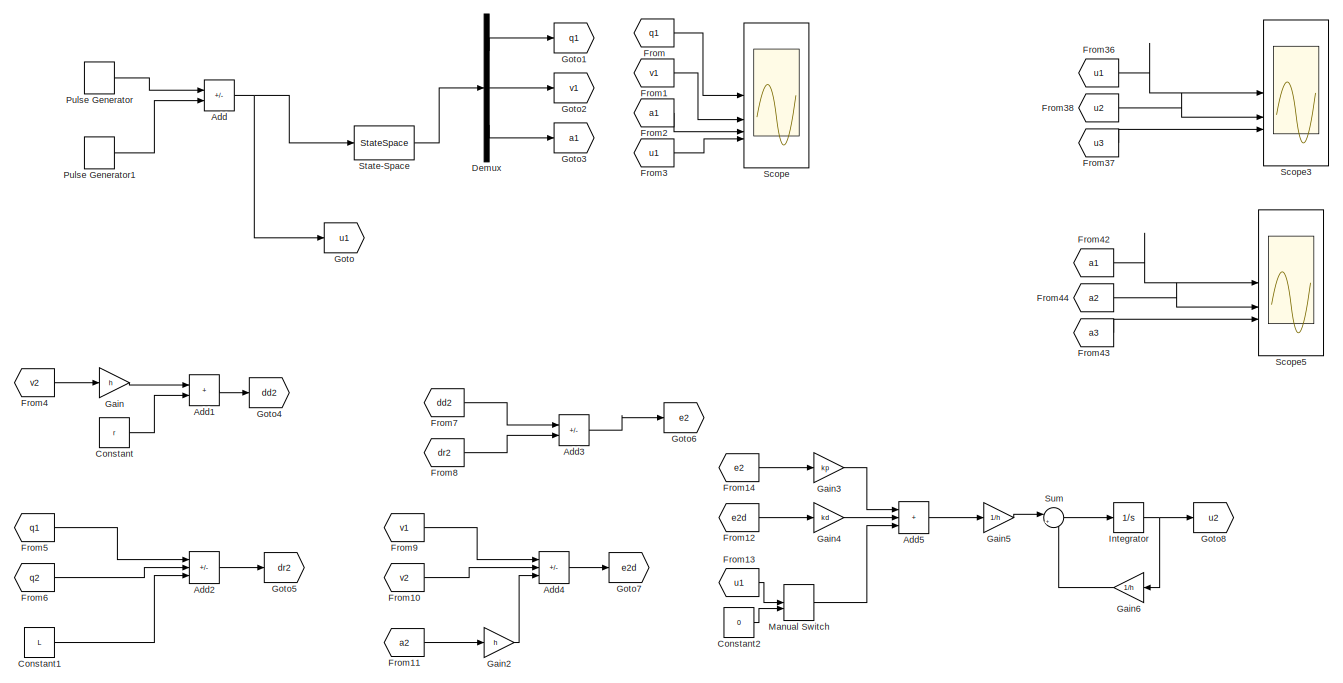
[diagram: root canvas - part 1/5, central region]
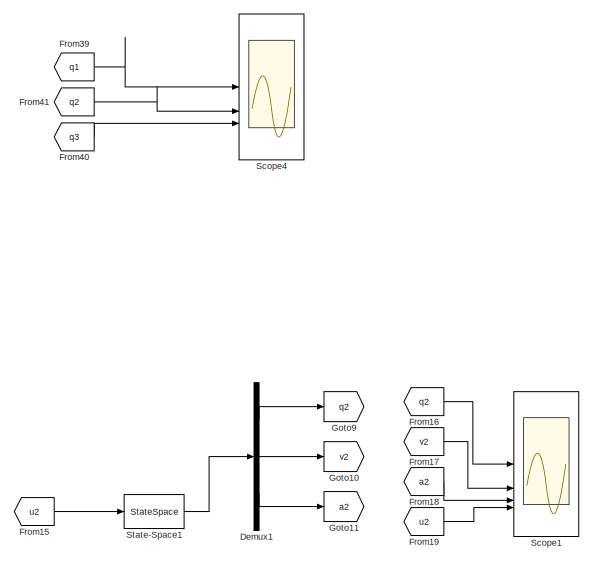
[diagram: root canvas - part 2/5, top right region]
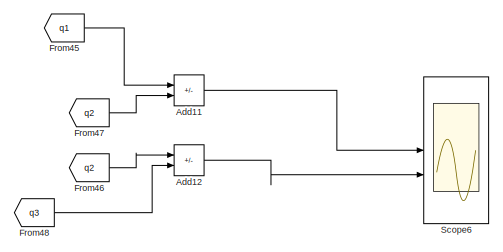
[diagram: root canvas - part 3/5, top left region]
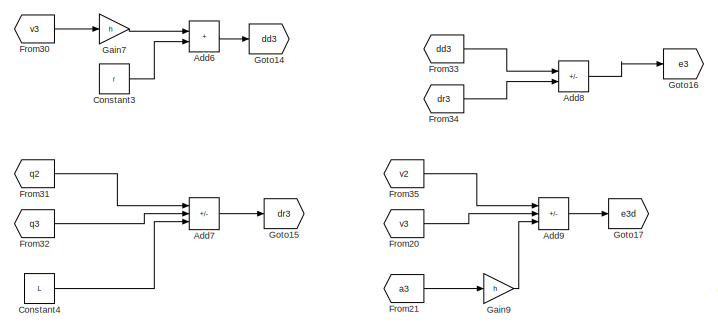
[diagram: root canvas - part 4/5, bottom center region]
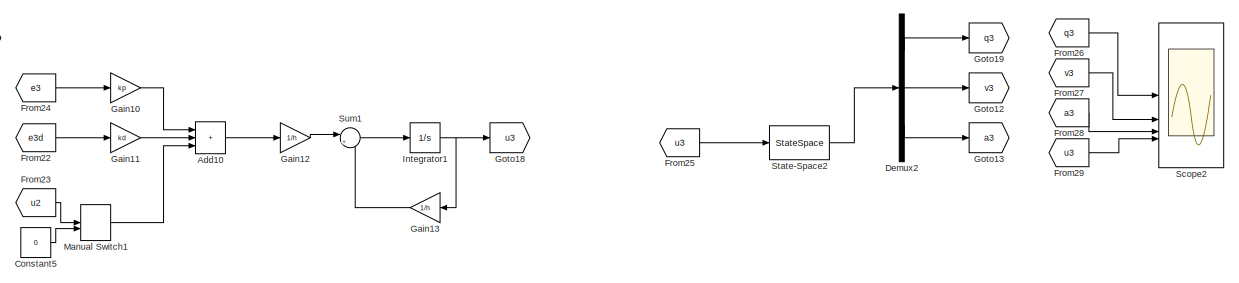
[diagram: root canvas - part 5/5, bottom right region]
MODEL slx_a03829e7500b
KIND model
CONFIG AbsTol = auto
CONFIG EnableMultiTasking = off
CONFIG FixedStep = auto
CONFIG MaxStep = auto
CONFIG MinStep = auto
CONFIG RelTol = 1e-3
CONFIG SampleTimeConstraint = Unconstrained
CONFIG SolverName = VariableStepAuto
CONFIG StartTime = 0.0
CONFIG StopTime = 140
BLOCK [Sum] Add
  IconShape = rectangular
  Inputs = +-
BLOCK [Sum] Add1
  IconShape = rectangular
BLOCK [Sum] Add10
  IconShape = rectangular
  Inputs = +++
BLOCK [Sum] Add11
  IconShape = rectangular
  Inputs = +-
BLOCK [Sum] Add12
  IconShape = rectangular
  Inputs = +-
BLOCK [Sum] Add2
  IconShape = rectangular
  Inputs = +--
BLOCK [Sum] Add3
  IconShape = rectangular
  Inputs = -+
BLOCK [Sum] Add4
  IconShape = rectangular
  Inputs = +--
BLOCK [Sum] Add5
  IconShape = rectangular
  Inputs = +++
BLOCK [Sum] Add6
  IconShape = rectangular
BLOCK [Sum] Add7
  IconShape = rectangular
  Inputs = +--
BLOCK [Sum] Add8
  IconShape = rectangular
  Inputs = -+
BLOCK [Sum] Add9
  IconShape = rectangular
  Inputs = +--
BLOCK [Constant] Constant
  Value = r
BLOCK [Constant] Constant1
  Value = L
BLOCK [Constant] Constant2
  Value = 0
BLOCK [Constant] Constant3
  Value = r
BLOCK [Constant] Constant4
  Value = L
BLOCK [Constant] Constant5
  Value = 0
BLOCK [Demux] Demux
  Outputs = 3
BLOCK [Demux] Demux1
  Outputs = 3
BLOCK [Demux] Demux2
  Outputs = 3
BLOCK [From] From
  GotoTag = q1
BLOCK [From] From1
  GotoTag = v1
BLOCK [From] From10
  GotoTag = v2
BLOCK [From] From11
  GotoTag = a2
BLOCK [From] From12
  GotoTag = e2d
BLOCK [From] From13
  GotoTag = u1
BLOCK [From] From14
  GotoTag = e2
BLOCK [From] From15
  GotoTag = u2
BLOCK [From] From16
  GotoTag = q2
BLOCK [From] From17
  GotoTag = v2
BLOCK [From] From18
  GotoTag = a2
BLOCK [From] From19
  GotoTag = u2
BLOCK [From] From2
  GotoTag = a1
BLOCK [From] From20
  GotoTag = v3
BLOCK [From] From21
  GotoTag = a3
BLOCK [From] From22
  GotoTag = e3d
BLOCK [From] From23
  GotoTag = u2
BLOCK [From] From24
  GotoTag = e3
BLOCK [From] From25
  GotoTag = u3
BLOCK [From] From26
  GotoTag = q3
BLOCK [From] From27
  GotoTag = v3
BLOCK [From] From28
  GotoTag = a3
BLOCK [From] From29
  GotoTag = u3
BLOCK [From] From3
  GotoTag = u1
BLOCK [From] From30
  GotoTag = v3
BLOCK [From] From31
  GotoTag = q2
BLOCK [From] From32
  GotoTag = q3
BLOCK [From] From33
  GotoTag = dd3
BLOCK [From] From34
  GotoTag = dr3
BLOCK [From] From35
  GotoTag = v2
BLOCK [From] From36
  GotoTag = u1
BLOCK [From] From37
  GotoTag = u3
BLOCK [From] From38
  GotoTag = u2
BLOCK [From] From39
  GotoTag = q1
BLOCK [From] From4
  GotoTag = v2
BLOCK [From] From40
  GotoTag = q3
BLOCK [From] From41
  GotoTag = q2
BLOCK [From] From42
  GotoTag = a1
BLOCK [From] From43
  GotoTag = a3
BLOCK [From] From44
  GotoTag = a2
BLOCK [From] From45
  GotoTag = q1
BLOCK [From] From46
  GotoTag = q2
BLOCK [From] From47
  GotoTag = q2
BLOCK [From] From48
  GotoTag = q3
BLOCK [From] From5
  GotoTag = q1
BLOCK [From] From6
  GotoTag = q2
BLOCK [From] From7
  GotoTag = dd2
BLOCK [From] From8
  GotoTag = dr2
BLOCK [From] From9
  GotoTag = v1
BLOCK [Gain] Gain
  Gain = h
BLOCK [Gain] Gain10
  Gain = kp
BLOCK [Gain] Gain11
  Gain = kd
BLOCK [Gain] Gain12
  Gain = 1/h
BLOCK [Gain] Gain13
  Gain = 1/h
BLOCK [Gain] Gain2
  Gain = h
BLOCK [Gain] Gain3
  Gain = kp
BLOCK [Gain] Gain4
  Gain = kd
BLOCK [Gain] Gain5
  Gain = 1/h
BLOCK [Gain] Gain6
  Gain = 1/h
BLOCK [Gain] Gain7
  Gain = h
BLOCK [Gain] Gain9
  Gain = h
BLOCK [Goto] Goto
  GotoTag = u1
BLOCK [Goto] Goto1
  GotoTag = q1
BLOCK [Goto] Goto10
  GotoTag = v2
BLOCK [Goto] Goto11
  GotoTag = a2
BLOCK [Goto] Goto12
  GotoTag = v3
BLOCK [Goto] Goto13
  GotoTag = a3
BLOCK [Goto] Goto14
  GotoTag = dd3
BLOCK [Goto] Goto15
  GotoTag = dr3
BLOCK [Goto] Goto16
  GotoTag = e3
BLOCK [Goto] Goto17
  GotoTag = e3d
BLOCK [Goto] Goto18
  GotoTag = u3
BLOCK [Goto] Goto19
  GotoTag = q3
BLOCK [Goto] Goto2
  GotoTag = v1
BLOCK [Goto] Goto3
  GotoTag = a1
BLOCK [Goto] Goto4
  GotoTag = dd2
BLOCK [Goto] Goto5
  GotoTag = dr2
BLOCK [Goto] Goto6
  GotoTag = e2
BLOCK [Goto] Goto7
  GotoTag = e2d
BLOCK [Goto] Goto8
  GotoTag = u2
BLOCK [Goto] Goto9
  GotoTag = q2
BLOCK [Integrator] Integrator
BLOCK [Integrator] Integrator1
BLOCK [ManualSwitch] Manual Switch
  CurrentSetting = 0
BLOCK [ManualSwitch] Manual Switch1
  CurrentSetting = 0
BLOCK [DiscretePulseGenerator] Pulse Generator
  Amplitude = amax
  Period = 4*tmax
  PulseType = Time based
  PulseWidth = 50
BLOCK [DiscretePulseGenerator] Pulse Generator1
  Amplitude = amax
  Period = 4*tmax
  PhaseDelay = tmax
  PulseType = Time based
  PulseWidth = 50
BLOCK [Scope] Scope
  Floating = off
  NumInputPorts = 4
  ScopeSpecificationString = Simulink.scopes.TimeScopeBlockCfg('CurrentConfiguration', extmgr.ConfigurationSet(extmgr.Configuration('Core','General UI',true),extmgr.Configuration('Core','Source UI',true),extmgr.Configuration('Sources','WiredSimulink',true),extmgr.Configuration('Visuals','Time Domain',true,'SerializedDisplays',{struct('MinYLimReal','-248.4','MaxYLimReal','2235.6','YLabelReal','','MinYLimMag',' 0.00000','MaxYLi...<+3397ch>
BLOCK [Scope] Scope1
  Floating = off
  NumInputPorts = 4
  ScopeSpecificationString = Simulink.scopes.TimeScopeBlockCfg('CurrentConfiguration', extmgr.ConfigurationSet(extmgr.Configuration('Core','General UI',true),extmgr.Configuration('Core','Source UI',true),extmgr.Configuration('Sources','WiredSimulink',true,'DataLoggingVariableName','ScopeData1'),extmgr.Configuration('Visuals','Time Domain',true,'SerializedDisplays',{struct('MinYLimReal','-249.35058','MaxYLimReal','2242.10598',...<+3492ch>
BLOCK [Scope] Scope2
  Floating = off
  NumInputPorts = 4
  ScopeSpecificationString = Simulink.scopes.TimeScopeBlockCfg('CurrentConfiguration', extmgr.ConfigurationSet(extmgr.Configuration('Core','General UI',true),extmgr.Configuration('Core','Source UI',true),extmgr.Configuration('Sources','WiredSimulink',true,'DataLoggingVariableName','ScopeData2'),extmgr.Configuration('Visuals','Time Domain',true,'SerializedDisplays',{struct('MinYLimReal','-252.4658','MaxYLimReal','2249.88786','...<+3493ch>
BLOCK [Scope] Scope3
  Floating = off
  NumInputPorts = 3
  ScopeSpecificationString = Simulink.scopes.TimeScopeBlockCfg('CurrentConfiguration', extmgr.ConfigurationSet(extmgr.Configuration('Core','General UI',true),extmgr.Configuration('Core','Source UI',true),extmgr.Configuration('Sources','WiredSimulink',true,'DataLoggingVariableName','ScopeData3'),extmgr.Configuration('Visuals','Time Domain',true,'SerializedDisplays',{struct('MinYLimReal','-2.87767','MaxYLimReal','2.89901','YLab...<+1443ch>
BLOCK [Scope] Scope4
  Floating = off
  NumInputPorts = 3
  ScopeSpecificationString = Simulink.scopes.TimeScopeBlockCfg('CurrentConfiguration', extmgr.ConfigurationSet(extmgr.Configuration('Core','General UI',true),extmgr.Configuration('Core','Source UI',true),extmgr.Configuration('Sources','WiredSimulink',true,'DataLoggingVariableName','ScopeData4'),extmgr.Configuration('Visuals','Time Domain',true,'SerializedDisplays',{struct('MinYLimReal','643.4752','MaxYLimReal','665.30783','YL...<+1521ch>
BLOCK [Scope] Scope5
  Floating = off
  NumInputPorts = 3
  ScopeSpecificationString = Simulink.scopes.TimeScopeBlockCfg('CurrentConfiguration', extmgr.ConfigurationSet(extmgr.Configuration('Core','General UI',true),extmgr.Configuration('Core','Source UI',true),extmgr.Configuration('Sources','WiredSimulink',true,'DataLoggingVariableName','ScopeData5'),extmgr.Configuration('Visuals','Time Domain',true,'SerializedDisplays',{struct('MinYLimReal','-3.9355','MaxYLimReal','4.35465','YLabe...<+1440ch>
BLOCK [Scope] Scope6
  Floating = off
  NumInputPorts = 2
  ScopeSpecificationString = Simulink.scopes.TimeScopeBlockCfg('CurrentConfiguration', extmgr.ConfigurationSet(extmgr.Configuration('Core','General UI',true),extmgr.Configuration('Core','Source UI',true),extmgr.Configuration('Sources','WiredSimulink',true,'DataLoggingVariableName','ScopeData1'),extmgr.Configuration('Visuals','Time Domain',true,'SerializedDisplays',{struct('MinYLimReal','-12.66016','MaxYLimReal','40.71688','YL...<+1483ch>
BLOCK [StateSpace] State-Space
  A = A
  B = B
  C = eye(ns)
  D = zeros(ns,1)
  InitialCondition = z1
  ParameterTunability = Unconstrained
BLOCK [StateSpace] State-Space1
  A = A
  B = B
  C = eye(ns)
  D = zeros(ns,1)
  InitialCondition = z1
  ParameterTunability = Unconstrained
BLOCK [StateSpace] State-Space2
  A = A
  B = B
  C = eye(ns)
  D = zeros(ns,1)
  InitialCondition = z1
  ParameterTunability = Unconstrained
BLOCK [Sum] Sum
  Inputs = |+-
BLOCK [Sum] Sum1
  Inputs = |+-
LINE Add10:1 -> Gain12:1
LINE Add11:1 -> Scope6:1
LINE Add12:1 -> Scope6:2
LINE Add1:1 -> Goto4:1
LINE Add2:1 -> Goto5:1
LINE Add3:1 -> Goto6:1
LINE Add4:1 -> Goto7:1
LINE Add5:1 -> Gain5:1
LINE Add6:1 -> Goto14:1
LINE Add7:1 -> Goto15:1
LINE Add8:1 -> Goto16:1
LINE Add9:1 -> Goto17:1
NET Add:1 -> Goto:1, State-Space:1
LINE Constant1:1 -> Add2:3
LINE Constant2:1 -> Manual Switch:2
LINE Constant3:1 -> Add6:2
LINE Constant4:1 -> Add7:3
LINE Constant5:1 -> Manual Switch1:2
LINE Constant:1 -> Add1:2
LINE Demux1:1 -> Goto9:1
LINE Demux1:2 -> Goto10:1
LINE Demux1:3 -> Goto11:1
LINE Demux2:1 -> Goto19:1
LINE Demux2:2 -> Goto12:1
LINE Demux2:3 -> Goto13:1
LINE Demux:1 -> Goto1:1
LINE Demux:2 -> Goto2:1
LINE Demux:3 -> Goto3:1
LINE From10:1 -> Add4:2
LINE From11:1 -> Gain2:1
LINE From12:1 -> Gain4:1
LINE From13:1 -> Manual Switch:1
LINE From14:1 -> Gain3:1
LINE From15:1 -> State-Space1:1
LINE From16:1 -> Scope1:1
LINE From17:1 -> Scope1:2
LINE From18:1 -> Scope1:3
LINE From19:1 -> Scope1:4
LINE From1:1 -> Scope:2
LINE From20:1 -> Add9:2
LINE From21:1 -> Gain9:1
LINE From22:1 -> Gain11:1
LINE From23:1 -> Manual Switch1:1
LINE From24:1 -> Gain10:1
LINE From25:1 -> State-Space2:1
LINE From26:1 -> Scope2:1
LINE From27:1 -> Scope2:2
LINE From28:1 -> Scope2:3
LINE From29:1 -> Scope2:4
LINE From2:1 -> Scope:3
LINE From30:1 -> Gain7:1
LINE From31:1 -> Add7:1
LINE From32:1 -> Add7:2
LINE From33:1 -> Add8:1
LINE From34:1 -> Add8:2
LINE From35:1 -> Add9:1
LINE From36:1 -> Scope3:1
LINE From37:1 -> Scope3:3
LINE From38:1 -> Scope3:2
LINE From39:1 -> Scope4:1
LINE From3:1 -> Scope:4
LINE From40:1 -> Scope4:3
LINE From41:1 -> Scope4:2
LINE From42:1 -> Scope5:1
LINE From43:1 -> Scope5:3
LINE From44:1 -> Scope5:2
LINE From45:1 -> Add11:1
LINE From46:1 -> Add12:1
LINE From47:1 -> Add11:2
LINE From48:1 -> Add12:2
LINE From4:1 -> Gain:1
LINE From5:1 -> Add2:1
LINE From6:1 -> Add2:2
LINE From7:1 -> Add3:1
LINE From8:1 -> Add3:2
LINE From9:1 -> Add4:1
LINE From:1 -> Scope:1
LINE Gain10:1 -> Add10:1
LINE Gain11:1 -> Add10:2
LINE Gain12:1 -> Sum1:1
LINE Gain13:1 -> Sum1:2
LINE Gain2:1 -> Add4:3
LINE Gain3:1 -> Add5:1
LINE Gain4:1 -> Add5:2
LINE Gain5:1 -> Sum:1
LINE Gain6:1 -> Sum:2
LINE Gain7:1 -> Add6:1
LINE Gain9:1 -> Add9:3
LINE Gain:1 -> Add1:1
NET Integrator1:1 -> Gain13:1, Goto18:1
NET Integrator:1 -> Gain6:1, Goto8:1
LINE Manual Switch1:1 -> Add10:3
LINE Manual Switch:1 -> Add5:3
LINE Pulse Generator1:1 -> Add:2
LINE Pulse Generator:1 -> Add:1
LINE State-Space1:1 -> Demux1:1
LINE State-Space2:1 -> Demux2:1
LINE State-Space:1 -> Demux:1
LINE Sum1:1 -> Integrator1:1
LINE Sum:1 -> Integrator:1
note: NET lines group one-source signal fan-out (src -> all destinations, sorted); 1:1 wires keep LINE
